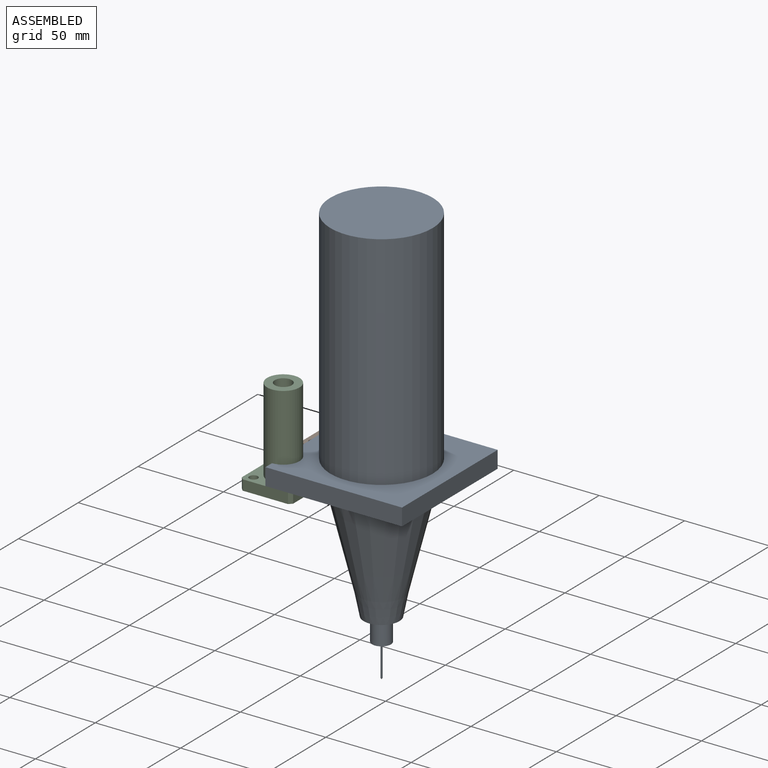
[diagram: assembled view]
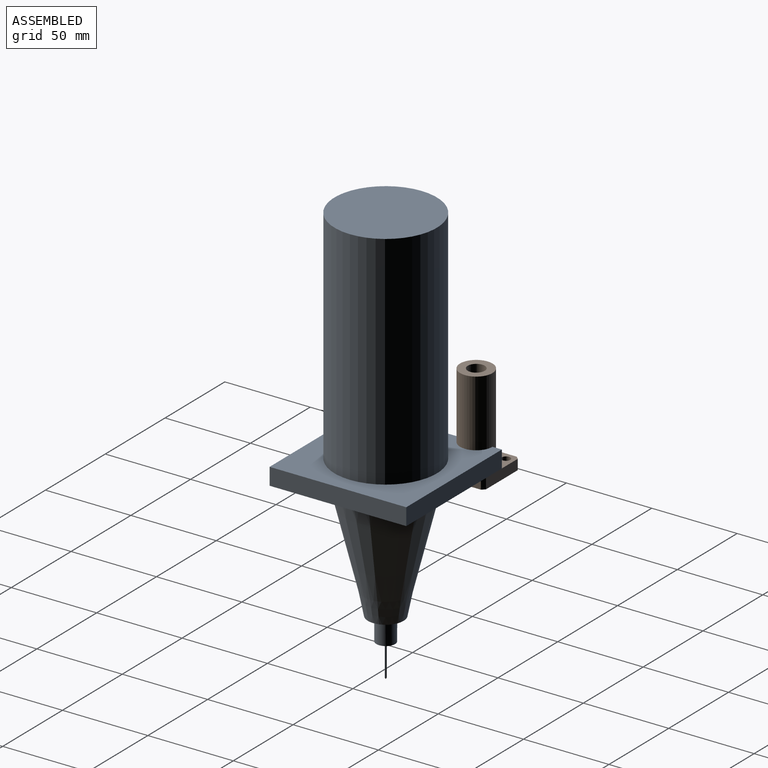
[diagram: assembled view, second angle]
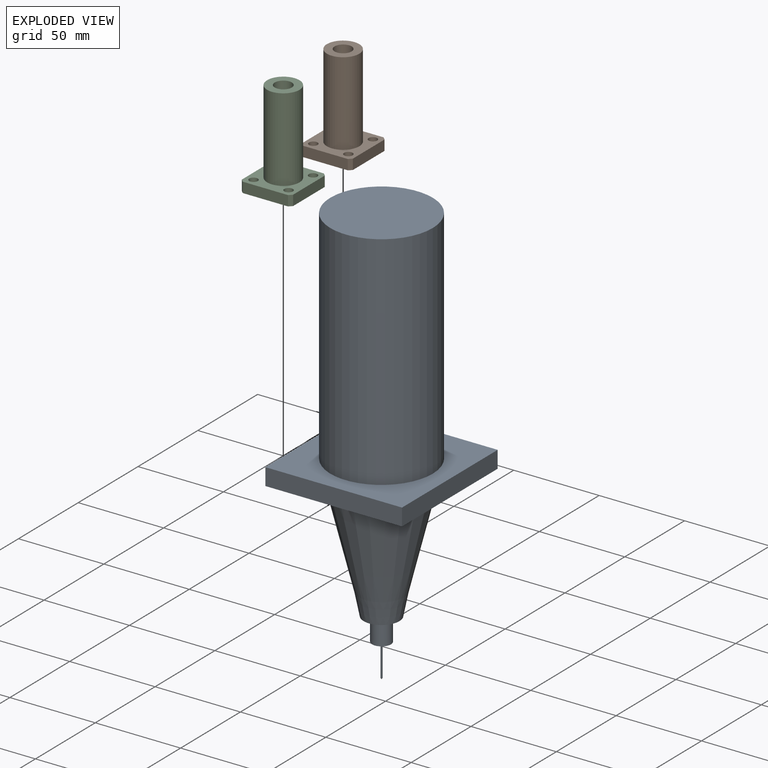
[diagram: exploded view]
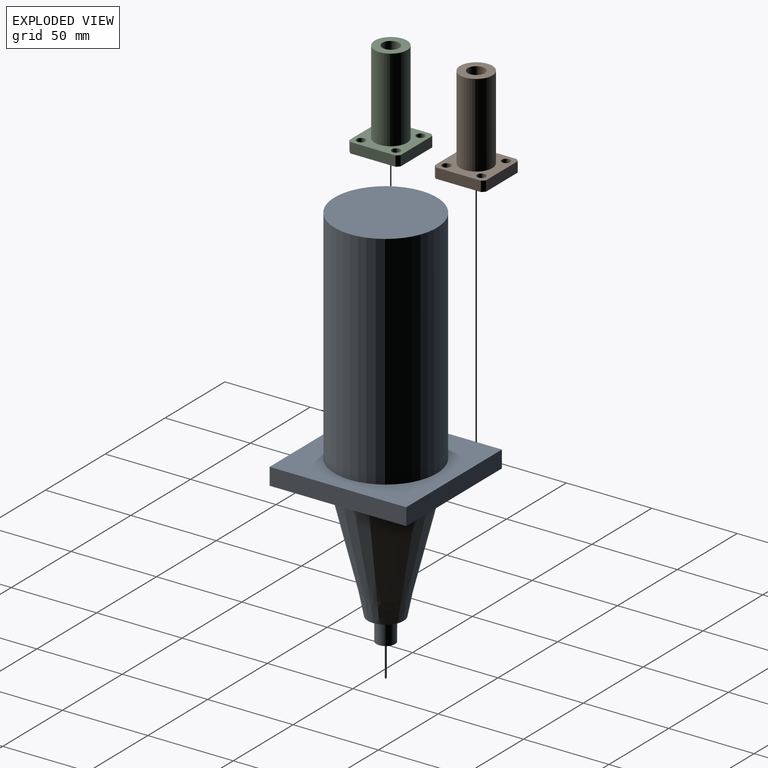
[diagram: exploded view, second angle]
ASSEMBLY  parts=3 mates=2
PART A: 15 faces, bbox 80x80x246.9 mm
  f0: cone r=13.1mm half-angle=14deg, axis (0,0,1), area 7985.1mm2, adj f3,f8
  f1: cylinder r=5.5mm len=13.6mm, axis (0,0,-1), area 470mm2, adj f2,f4
  f2: plane 11x11mm, normal (0,0,-1), area 94.2mm2, adj f1,f6
  f3: cone r=10.45mm half-angle=11.3deg, axis (0,0,1), area 1003.3mm2, adj f0,f4
  f4: plane 20.9x20.9mm, normal (0,0,-1), area 248mm2, adj f1,f3
  f5: cone r=0.58mm half-angle=30deg, axis (0,0,1), area 1.6mm2, adj f6
  f6: cylinder r=0.5mm len=19.13mm, axis (0,0,1), area 60.1mm2, adj f2,f5
  f7: plane 80x10mm, normal (-1,0,0), area 800mm2, adj f8,f10,f11,f12
  f8: plane 80x80mm, normal (0,0,-1), area 3934.9mm2, adj f0,f7,f9,f11,f12
  f9: plane 80x10mm, normal (1,0,0), area 800mm2, adj f8,f10,f11,f12
  f10: plane 80x80mm, normal (0,0,1), area 3572.6mm2, adj f7,f9,f11,f12,f14
  f11: plane 80x10mm, normal (0,-1,0), area 800mm2, adj f7,f8,f9,f10
  f12: plane 80x10mm, normal (0,1,0), area 800mm2, adj f7,f8,f9,f10
  f13: plane 60x60mm, normal (0,0,1), area 2827.4mm2, adj f14
  f14: cylinder r=30mm len=130mm, axis (0,0,-1), area 24504.4mm2, adj f10,f13
PART B: 25 faces, bbox 30x30x55 mm
  f0: cylinder r=5mm len=55mm, axis (0,0,-1), area 1727.9mm2, adj f2,f3
  f1: cylinder r=9.5mm len=49mm, axis (0,0,-1), area 2924.8mm2, adj f2,f16
  f2: plane 19x19mm, normal (0,0,1), area 205mm2, adj f0,f1
  f3: plane 30x30mm, normal (0,0,-1), area 638.7mm2, adj f0,f4,f5,f6,f7,f8,f9,f10
  f4: cylinder r=20mm len=6mm, axis (0,0,-1), area 15mm2, adj f3,f5,f14,f16
  f5: plane 26.46x6mm, normal (1,0,0), area 158.7mm2, adj f3,f4,f6,f16
  f6: cylinder r=20mm len=6mm, axis (0,0,-1), area 15mm2, adj f3,f5,f7,f16
  f7: plane 26.46x6mm, normal (0,1,0), area 158.7mm2, adj f3,f6,f8,f16
  f8: cylinder r=20mm len=6mm, axis (0,0,-1), area 15mm2, adj f3,f7,f9,f16
  f9: plane 26.46x6mm, normal (-1,0,0), area 158.7mm2, adj f3,f8,f10,f16
  f10: cylinder r=20mm len=6mm, axis (0,0,-1), area 15mm2, adj f3,f9,f14,f16
  f11: cylinder r=2.5mm len=5mm, axis (0,0,-1), area 29.8mm2, adj f16,f24
  f12: cylinder r=2.5mm len=5mm, axis (0,0,-1), area 29.8mm2, adj f16,f22
  f13: cylinder r=2.5mm len=5mm, axis (0,0,-1), area 29.8mm2, adj f16,f20
  f14: plane 26.46x6mm, normal (0,-1,0), area 158.7mm2, adj f3,f4,f10,f16
  f15: cylinder r=2.5mm len=5mm, axis (0,0,-1), area 29.8mm2, adj f16,f18
  f16: plane 30x30mm, normal (0,0,1), area 531.9mm2, adj f1,f4,f5,f6,f7,f8,f9,f10
  f17: cylinder r=3.75mm len=7.5mm, axis (0,0,-1), area 96.6mm2, adj f3,f18
  f18: plane 7.5x7.5mm, normal (0,0,-1), area 24.5mm2, adj f15,f17
  f19: cylinder r=3.75mm len=7.5mm, axis (0,0,-1), area 96.6mm2, adj f3,f20
  f20: plane 7.5x7.5mm, normal (0,0,-1), area 24.5mm2, adj f13,f19
  f21: cylinder r=3.75mm len=7.5mm, axis (0,0,-1), area 96.6mm2, adj f3,f22
  f22: plane 7.5x7.5mm, normal (0,0,-1), area 24.5mm2, adj f12,f21
  f23: cylinder r=3.75mm len=7.5mm, axis (0,0,-1), area 96.6mm2, adj f3,f24
  f24: plane 7.5x7.5mm, normal (0,0,-1), area 24.5mm2, adj f11,f23
PART C: same geometry as B
PLACE A t=(139.35,61.84,-61.9)mm fixed
PLACE B t=(-15,70,39)mm
PLACE C t=(-15,20,39)mm
MATE fastened C.f0 <-> A.f8  axis (0,0,-1) through (99.35,36.84,45)mm
MATE fastened A.f8 <-> B.f16  axis (0,0,-1) through (99.35,61.84,45)mm
